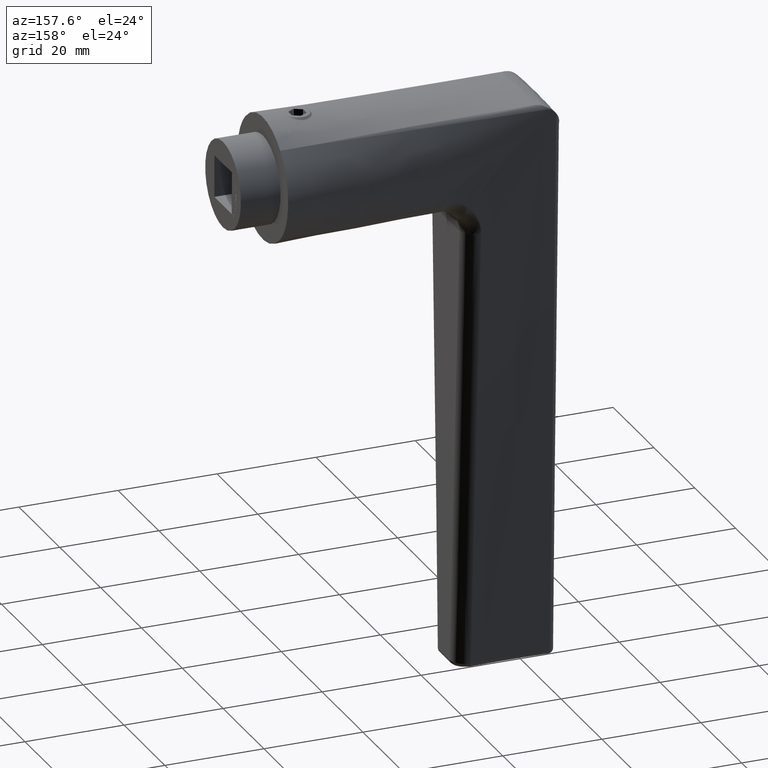
[diagram: clean part render]
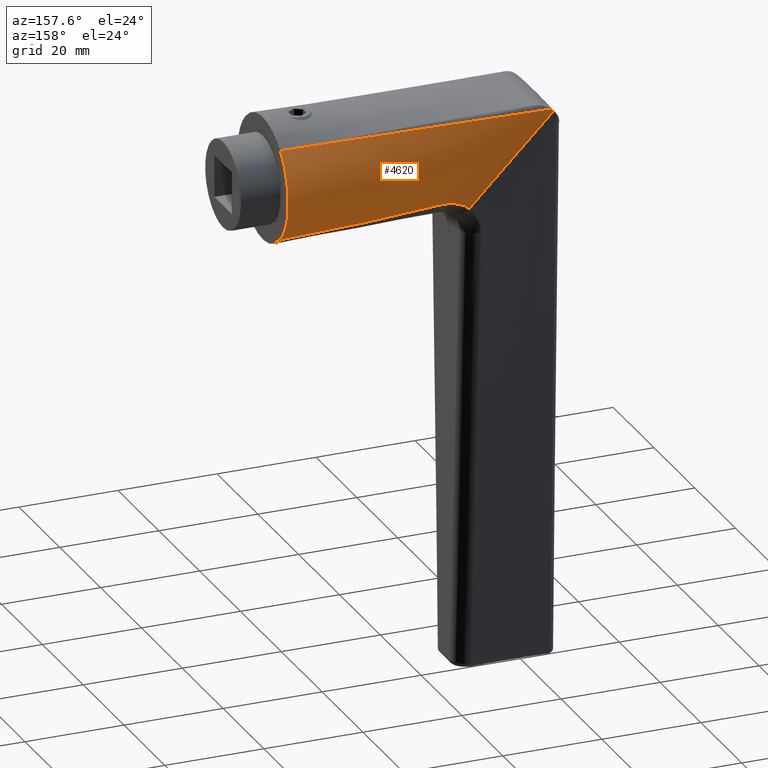
[diagram: same view with one face highlighted and labeled with its STEP entity id]
A machine part, auxiliary view. The second image highlights one B-rep face of the part: STEP entity #4620.
In plain terms, the highlighted face is a freeform B-spline surface patch.
Its self-contained STEP definition (entity closure, byte-faithful):
#131 = CARTESIAN_POINT ( 'NONE',  ( 7.348148607151642864, -9.124674805242452891, 42.83485025736426621 ) ) ;
#234 = CARTESIAN_POINT ( 'NONE',  ( 8.981341703902744555, -8.760418994513679891, 10.68881117263278213 ) ) ;
#358 = CARTESIAN_POINT ( 'NONE',  ( -1.797926682943653987, -12.40190765412987517, 7.999999999999989342 ) ) ;
#369 = CARTESIAN_POINT ( 'NONE',  ( 9.095085938862473185, -8.574929257125450732, 7.999999999999996447 ) ) ;
#451 = LINE ( 'NONE', #4737, #9428 ) ;
#625 = DIRECTION ( 'NONE',  ( 0.7071067969854368807, -7.116457327402371524E-16, -0.7071067653876578207 ) ) ;
#740 = CARTESIAN_POINT ( 'NONE',  ( -1.797926682943653764, -12.40190765412987339, 7.999999999999996447 ) ) ;
#821 = CARTESIAN_POINT ( 'NONE',  ( -3.181980799719330566, -8.999999999999991118, 58.18198023095927596 ) ) ;
#978 = B_SPLINE_CURVE_WITH_KNOTS ( 'NONE', 3,
 ( #10651, #8621, #12400, #9767, #1890, #8866 ),
 .UNSPECIFIED., .F., .F.,
 ( 4, 2, 4 ),
 ( 0.001059094984416164261, 0.02830501481592489349, 0.05555093464743363768 ),
 .UNSPECIFIED. ) ;
#1036 = CARTESIAN_POINT ( 'NONE',  ( 7.196198243299996911, -9.161713836207706407, 42.07902804991717716 ) ) ;
#1048 = CARTESIAN_POINT ( 'NONE',  ( 9.545941546018376300, -9.000000000000003553, 45.45405845398158107 ) ) ;
#1124 = CARTESIAN_POINT ( 'NONE',  ( 7.853315722780626729, -9.048574393681439787, 44.29038664531419300 ) ) ;
#1129 = CARTESIAN_POINT ( 'NONE',  ( 6.363960959584007426, -9.000000000000001776, 48.63603889822594795 ) ) ;
#1162 = EDGE_CURVE ( 'NONE', #6972, #2860, #451, .T. ) ;
#1165 = CARTESIAN_POINT ( 'NONE',  ( 7.127072476725010652, -9.223139678748303538, 40.28758623321909482 ) ) ;
#1311 = CARTESIAN_POINT ( 'NONE',  ( -7.983898025433429524, -9.652444378944599279, 7.999999999999988454 ) ) ;
#1731 = CARTESIAN_POINT ( 'NONE',  ( 4.371853286320547483, -11.74201523721066032, 7.999999999999998224 ) ) ;
#1820 = CARTESIAN_POINT ( 'NONE',  ( 1.590990079932382173, -8.999999999999994671, 53.40900956459255156 ) ) ;
#1890 = CARTESIAN_POINT ( 'NONE',  ( -9.079295783503500417, -8.736731199885099386, 17.08051812084660526 ) ) ;
#2123 = CARTESIAN_POINT ( 'NONE',  ( 8.750446399409788967, -9.000000000000001776, 46.24955356504266746 ) ) ;
#2155 = CARTESIAN_POINT ( 'NONE',  ( 8.663933717097178189, -9.003020372079395983, 45.60681259421391331 ) ) ;
#2210 = CARTESIAN_POINT ( 'NONE',  ( -9.095086130120410672, -8.574929054265771455, 7.999999999999996447 ) ) ;
#2351 = CARTESIAN_POINT ( 'NONE',  ( 1.797926406327573279, -12.40190769423139727, 7.999999999999989342 ) ) ;
#2360 = CARTESIAN_POINT ( 'NONE',  ( 8.371463720248183193, -9.219175046281204544, 21.44884689624365848 ) ) ;
#2724 = CARTESIAN_POINT ( 'NONE',  ( 5.937138179141197014, -11.03351318618793009, 7.999999999999998224 ) ) ;
#2808 = CARTESIAN_POINT ( 'NONE',  ( 0.8990821666502631926, -12.50000001002670480, 7.999999999999996447 ) ) ;
#2860 = VERTEX_POINT ( 'NONE', #9746 ) ;
#2893 = CARTESIAN_POINT ( 'NONE',  ( -0.8990824454542259980, -12.49999998997329342, 7.999999999999996447 ) ) ;
#3112 = CARTESIAN_POINT ( 'NONE',  ( 11.11608422191266499, -9.000000000000007105, 43.88391584825070879 ) ) ;
#3469 = CARTESIAN_POINT ( 'NONE',  ( 8.575154476640914680, -9.126399851159106902, 7.999999999999992895 ) ) ;
#3730 = CARTESIAN_POINT ( 'NONE',  ( 6.664941330960082233, -10.60617118587094332, 7.999999999999998224 ) ) ;
#3769 = CARTESIAN_POINT ( 'NONE',  ( -7.983898025433429524, -9.652444378944599279, 7.999999999999996447 ) ) ;
#3810 = CARTESIAN_POINT ( 'NONE',  ( 3.534496548768528701, -12.02277788057108232, 7.999999999999996447 ) ) ;
#3858 = CARTESIAN_POINT ( 'NONE',  ( -8.575154680199027268, -9.126399659896142325, 7.999999999999996447 ) ) ;
#3906 = CARTESIAN_POINT ( 'NONE',  ( -7.954951679371130346, -8.999999999999984013, 62.95495089732605720 ) ) ;
#3962 = CARTESIAN_POINT ( 'NONE',  ( -8.248997896172683753, -9.003722113108503677, 62.88569704957719608 ) ) ;
#4049 = CARTESIAN_POINT ( 'NONE',  ( 7.983897810142247309, -9.652444557019988380, 7.999999999999998224 ) ) ;
#4080 = CARTESIAN_POINT ( 'NONE',  ( 7.091333745621879459, -9.212755877837118135, 40.80493260570081304 ) ) ;
#4120 = CARTESIAN_POINT ( 'NONE',  ( 8.586919191931423612, -9.005051621197685208, 45.50270247623511466 ) ) ;
#4312 = CARTESIAN_POINT ( 'NONE',  ( -5.937138425236171635, -11.03351305376411595, 7.999999999999989342 ) ) ;
#4412 = EDGE_CURVE ( 'NONE', #10884, #2860, #11461, .T. ) ;
#4620 = ADVANCED_FACE ( 'NONE', ( #7939 ), #11652, .T. ) ;
#4737 = CARTESIAN_POINT ( 'NONE',  ( -9.545941972588419588, -8.999999999999984013, 64.54594111944832946 ) ) ;
#4751 = VERTEX_POINT ( 'NONE', #10263 ) ;
#4762 = CARTESIAN_POINT ( 'NONE',  ( -8.068958645515973416, -8.999999999999985789, 63.06895785837637902 ) ) ;
#4768 = CARTESIAN_POINT ( 'NONE',  ( -6.664941567523483990, -10.60617103721397214, 7.999999999999996447 ) ) ;
#4891 = CARTESIAN_POINT ( 'NONE',  ( 1.797926406327573057, -12.40190769423139550, 7.999999999999996447 ) ) ;
#4941 = CARTESIAN_POINT ( 'NONE',  ( 10.12132296979168267, -7.486440511613262849, 7.999999999999991118 ) ) ;
#5021 = CARTESIAN_POINT ( 'NONE',  ( 7.104717201292205075, -9.194721236620740257, 41.31735371105738608 ) ) ;
#5038 = CARTESIAN_POINT ( 'NONE',  ( -8.560837651876914478, -9.004681798781380309, 62.48558604108843184 ) ) ;
#5148 = ORIENTED_EDGE ( 'NONE', *, *, #1162, .F. ) ;
#5272 = CARTESIAN_POINT ( 'NONE',  ( 7.859498188751238068, -9.359684809149127815, 29.52338220782910838 ) ) ;
#5846 = CARTESIAN_POINT ( 'NONE',  ( -3.977475946327959200, -8.999999999999989342, 58.97747534202039787 ) ) ;
#5931 = CARTESIAN_POINT ( 'NONE',  ( 10.59270332994790209, -9.000000000000007105, 44.40729671682766622 ) ) ;
#6054 = CARTESIAN_POINT ( 'NONE',  ( 7.238656695705091515, -9.149713159717276056, 42.33175371484380634 ) ) ;
#6060 = CARTESIAN_POINT ( 'NONE',  ( 9.437164949172210271, -8.212099675288055067, 7.999999999999994671 ) ) ;
#6116 = VERTEX_POINT ( 'NONE', #2210 ) ;
#6140 = CARTESIAN_POINT ( 'NONE',  ( 8.991731987425264805, -9.000000000000003553, 46.00826798780928328 ) ) ;
#6199 = CARTESIAN_POINT ( 'NONE',  ( -6.664941567523484878, -10.60617103721397214, 7.999999999999988454 ) ) ;
#6213 = B_SPLINE_CURVE_WITH_KNOTS ( 'NONE', 3,
 ( #7241, #12149, #1311, #6199, #4312, #12241, #6279, #358, #7275, #8293, #2351, #7561, #8503, #12524, #12407, #10396, #3469, #7402 ),
 .UNSPECIFIED., .F., .F.,
 ( 4, 2, 2, 2, 2, 2, 2, 2, 4 ),
 ( 0.000000000000000000, 0.002533044296952212740, 0.005066088593904425480, 0.007599132890856638220, 0.01013217718780885096, 0.01266522148476106370, 0.01519826578171327644, 0.01773131007866549091, 0.02026435437561770192 ),
 .UNSPECIFIED. ) ;
#6279 = CARTESIAN_POINT ( 'NONE',  ( -3.534496816928377694, -12.02277780173654875, 7.999999999999989342 ) ) ;
#6317 = EDGE_CURVE ( 'NONE', #7389, #10884, #7286, .T. ) ;
#6467 = CARTESIAN_POINT ( 'NONE',  ( 7.127072476725010652, -9.223139678748303538, 40.28758623321909482 ) ) ;
#6673 = ORIENTED_EDGE ( 'NONE', *, *, #6317, .T. ) ;
#6701 = B_SPLINE_CURVE_WITH_KNOTS ( 'NONE', 3,
 ( #10936, #3962, #6834, #5038 ),
 .UNSPECIFIED., .F., .F.,
 ( 4, 4 ),
 ( 1.734723475976807094E-18, 0.0007598236545697956840 ),
 .UNSPECIFIED. ) ;
#6735 = CARTESIAN_POINT ( 'NONE',  ( -4.371853548218177288, -11.74201513969945410, 7.999999999999998224 ) ) ;
#6783 = CARTESIAN_POINT ( 'NONE',  ( 3.977475519758206346, -8.999999999999998224, 51.02252423140923554 ) ) ;
#6834 = CARTESIAN_POINT ( 'NONE',  ( -8.412732657302663952, -9.005075504354456584, 62.69108359565387900 ) ) ;
#6926 = CARTESIAN_POINT ( 'NONE',  ( 10.06932243798313920, -9.000000000000005329, 44.93067758540462364 ) ) ;
#6972 = VERTEX_POINT ( 'NONE', #4762 ) ;
#7051 = CARTESIAN_POINT ( 'NONE',  ( 7.415535004548392095, -9.111594277371796835, 43.08596601221802302 ) ) ;
#7165 = CARTESIAN_POINT ( 'NONE',  ( 7.498791036998454729, -9.331141597275649957, 34.90666635146217089 ) ) ;
#7241 = CARTESIAN_POINT ( 'NONE',  ( -9.095086130120410672, -8.574929054265771455, 7.999999999999996447 ) ) ;
#7275 = CARTESIAN_POINT ( 'NONE',  ( -0.8990824454542261090, -12.49999998997329520, 7.999999999999989342 ) ) ;
#7286 = B_SPLINE_CURVE_WITH_KNOTS ( 'NONE', 3,
 ( #369, #234, #12162, #12118, #2360, #5272, #7165, #11298 ),
 .UNSPECIFIED., .F., .F.,
 ( 4, 2, 2, 4 ),
 ( -6.124115898459243706E-05, 0.008031560986283554915, 0.01612436313155170969, 0.03230996742208802619 ),
 .UNSPECIFIED. ) ;
#7389 = VERTEX_POINT ( 'NONE', #8015 ) ;
#7402 = CARTESIAN_POINT ( 'NONE',  ( 9.095085938862473185, -8.574929257125450732, 7.999999999999996447 ) ) ;
#7561 = CARTESIAN_POINT ( 'NONE',  ( 3.534496548768529145, -12.02277788057108232, 7.999999999999989342 ) ) ;
#7655 = CARTESIAN_POINT ( 'NONE',  ( -0.7954953598934633163, -8.999999999999992895, 55.79549489777589599 ) ) ;
#7745 = CARTESIAN_POINT ( 'NONE',  ( 0.7954949333237695264, -8.999999999999994671, 54.20450467565366637 ) ) ;
#7785 = CARTESIAN_POINT ( 'NONE',  ( 5.568465812975411211, -9.000000000000000000, 49.43153400928703434 ) ) ;
#7895 = EDGE_CURVE ( 'NONE', #6972, #4751, #6701, .T. ) ;
#7939 = FACE_OUTER_BOUND ( 'NONE', #10349, .T. ) ;
#7970 = CARTESIAN_POINT ( 'NONE',  ( 8.823576236742461276, -9.000386256429750986, 45.81077151052825513 ) ) ;
#7976 = CARTESIAN_POINT ( 'NONE',  ( 9.779243959481947357, -7.849270093450658514, 7.999999999999992895 ) ) ;
#8015 = CARTESIAN_POINT ( 'NONE',  ( 9.095085938862473185, -8.574929257125450732, 7.999999999999996447 ) ) ;
#8108 = CARTESIAN_POINT ( 'NONE',  ( 8.907439281994557589, -8.999786543048449161, 45.91203064950226320 ) ) ;
#8293 = CARTESIAN_POINT ( 'NONE',  ( 0.8990821666502633036, -12.50000001002670658, 7.999999999999989342 ) ) ;
#8503 = CARTESIAN_POINT ( 'NONE',  ( 4.371853286320547483, -11.74201523721066209, 7.999999999999991118 ) ) ;
#8621 = CARTESIAN_POINT ( 'NONE',  ( -8.699851715069806701, -9.042706629840639110, 53.40475279833876954 ) ) ;
#8654 = ORIENTED_EDGE ( 'NONE', *, *, #12222, .T. ) ;
#8667 = CARTESIAN_POINT ( 'NONE',  ( -5.937138425236170747, -11.03351305376411595, 7.999999999999998224 ) ) ;
#8688 = ORIENTED_EDGE ( 'NONE', *, *, #4412, .T. ) ;
#8791 = CARTESIAN_POINT ( 'NONE',  ( -5.568466239545221796, -8.999999999999987566, 60.56846556414265592 ) ) ;
#8836 = CARTESIAN_POINT ( 'NONE',  ( -6.363961386153853539, -8.999999999999985789, 61.36396067520379205 ) ) ;
#8866 = CARTESIAN_POINT ( 'NONE',  ( -9.095086130120410672, -8.574929054265771455, 7.999999999999996447 ) ) ;
#9017 = CARTESIAN_POINT ( 'NONE',  ( 8.575154476640914680, -9.126399851159106902, 7.999999999999998224 ) ) ;
#9053 = CARTESIAN_POINT ( 'NONE',  ( 7.651234279072157918, -9.073254227781081482, 43.82061493888417658 ) ) ;
#9140 = CARTESIAN_POINT ( 'NONE',  ( 8.364108169074500054, -9.012991490580487763, 45.18411874344484858 ) ) ;
#9428 = VECTOR ( 'NONE', #625, 1000.000000000000000 ) ;
#9697 = CARTESIAN_POINT ( 'NONE',  ( -9.545941972588419588, -8.999999999999984013, 64.54594111944832946 ) ) ;
#9746 = CARTESIAN_POINT ( 'NONE',  ( 8.991731987425264805, -9.000000000000003553, 46.00826798780928328 ) ) ;
#9767 = CARTESIAN_POINT ( 'NONE',  ( -9.015997918294418767, -8.872630516623258856, 26.16131667200586008 ) ) ;
#10050 = CARTESIAN_POINT ( 'NONE',  ( 8.227057977803339028, -9.020737979632988512, 44.96399382858600546 ) ) ;
#10263 = CARTESIAN_POINT ( 'NONE',  ( -8.560837651876914478, -9.004681798781380309, 62.48558604108843184 ) ) ;
#10349 = EDGE_LOOP ( 'NONE', ( #8654, #6673, #8688, #5148, #10927, #12796 ) ) ;
#10396 = CARTESIAN_POINT ( 'NONE',  ( 7.983897810142247309, -9.652444557019988380, 7.999999999999992895 ) ) ;
#10651 = CARTESIAN_POINT ( 'NONE',  ( -8.560837651876914478, -9.004681798781380309, 62.48558604108843184 ) ) ;
#10735 = CARTESIAN_POINT ( 'NONE',  ( 3.181980373149600361, -8.999999999999996447, 51.81801934247033614 ) ) ;
#10884 = VERTEX_POINT ( 'NONE', #6467 ) ;
#10925 = CARTESIAN_POINT ( 'NONE',  ( 7.954951252801198081, -9.000000000000001776, 47.04504867610375385 ) ) ;
#10927 = ORIENTED_EDGE ( 'NONE', *, *, #7895, .T. ) ;
#10936 = CARTESIAN_POINT ( 'NONE',  ( -8.068958645515973416, -8.999999999999985789, 63.06895785837637902 ) ) ;
#11298 = CARTESIAN_POINT ( 'NONE',  ( 7.127072476725010652, -9.223139678748303538, 40.28758623321909482 ) ) ;
#11403 = EDGE_CURVE ( 'NONE', #4751, #6116, #978, .T. ) ;
#11461 = B_SPLINE_CURVE_WITH_KNOTS ( 'NONE', 3,
 ( #1165, #4080, #5021, #1036, #6054, #131, #7051, #9053, #1124, #10050, #9140, #4120, #2155, #7970, #8108, #6140 ),
 .UNSPECIFIED., .F., .F.,
 ( 4, 2, 2, 2, 2, 2, 2, 4 ),
 ( 0.000000000000000000, 0.001535199683851159623, 0.002302799525776739326, 0.003070399367702319245, 0.004605599051553499468, 0.005373198893479087628, 0.005756998814441883876, 0.006140798735404679257 ),
 .UNSPECIFIED. ) ;
#11652 = B_SPLINE_SURFACE_WITH_KNOTS ( 'NONE', 3, 1, ( 
 ( #11748, #9697 ),
 ( #3858, #12692 ),
 ( #3769, #3906 ),
 ( #4768, #8836 ),
 ( #8667, #8791 ),
 ( #6735, #5846 ),
 ( #12826, #821 ),
 ( #740, #11827 ),
 ( #2893, #7655 ),
 ( #2808, #7745 ),
 ( #4891, #1820 ),
 ( #3810, #10735 ),
 ( #1731, #6783 ),
 ( #2724, #7785 ),
 ( #3730, #1129 ),
 ( #4049, #10925 ),
 ( #9017, #2123 ),
 ( #11923, #1048 ),
 ( #6060, #6926 ),
 ( #7976, #5931 ),
 ( #4941, #3112 ) ),
 .UNSPECIFIED., .F., .F., .F.,
 ( 4, 2, 2, 2, 2, 2, 2, 2, 3, 4 ),
 ( 2, 2 ),
 ( 0.000000000000000000, 0.1250000000000000000, 0.2500000000000000000, 0.3750000000000000000, 0.5000000000000000000, 0.6250000000000000000, 0.7500000000000000000, 0.8750000000000000000, 1.000000000000000000, 1.082241371018427545 ),
 ( 0.000000000000000000, 1.000000000000000000 ),
 .UNSPECIFIED. ) ;
#11748 = CARTESIAN_POINT ( 'NONE',  ( -9.095086130120410672, -8.574929054265771455, 7.999999999999996447 ) ) ;
#11827 = CARTESIAN_POINT ( 'NONE',  ( -1.590990506502083290, -8.999999999999991118, 56.59099000883702502 ) ) ;
#11923 = CARTESIAN_POINT ( 'NONE',  ( 9.095085938862474961, -8.574929257125450732, 7.999999999999996447 ) ) ;
#12118 = CARTESIAN_POINT ( 'NONE',  ( 8.536739593058504383, -9.141099208415560895, 18.75762851008034104 ) ) ;
#12149 = CARTESIAN_POINT ( 'NONE',  ( -8.575154680199027268, -9.126399659896142325, 7.999999999999988454 ) ) ;
#12162 = CARTESIAN_POINT ( 'NONE',  ( 8.841735683459303274, -8.912090148758680996, 13.37777525633487841 ) ) ;
#12222 = EDGE_CURVE ( 'NONE', #6116, #7389, #6213, .T. ) ;
#12241 = CARTESIAN_POINT ( 'NONE',  ( -4.371853548218177288, -11.74201513969945587, 7.999999999999991118 ) ) ;
#12400 = CARTESIAN_POINT ( 'NONE',  ( -8.824032322846782961, -9.025056998736406655, 44.32363470873612954 ) ) ;
#12407 = CARTESIAN_POINT ( 'NONE',  ( 6.664941330960083121, -10.60617118587094332, 7.999999999999991118 ) ) ;
#12524 = CARTESIAN_POINT ( 'NONE',  ( 5.937138179141197902, -11.03351318618793009, 7.999999999999991118 ) ) ;
#12692 = CARTESIAN_POINT ( 'NONE',  ( -8.750446825979773635, -8.999999999999984013, 63.75044600838719333 ) ) ;
#12796 = ORIENTED_EDGE ( 'NONE', *, *, #11403, .T. ) ;
#12826 = CARTESIAN_POINT ( 'NONE',  ( -3.534496816928377250, -12.02277780173654698, 7.999999999999996447 ) ) ;